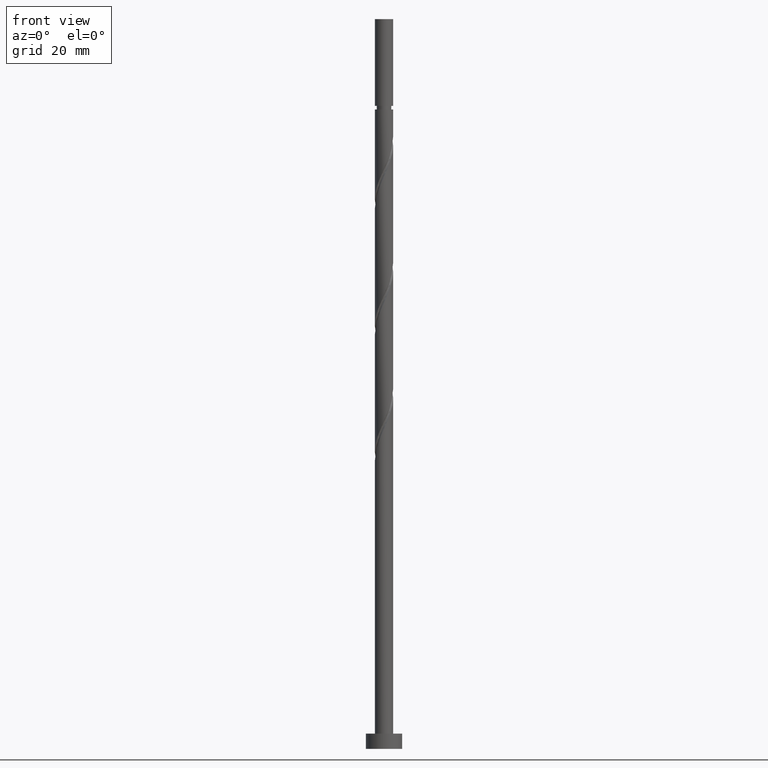
[diagram: clean part render]
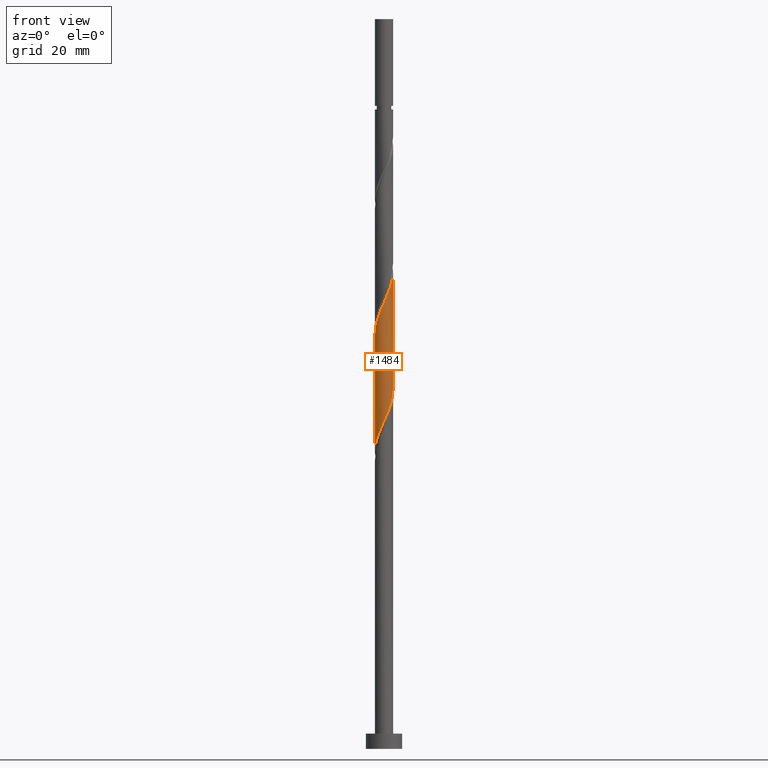
[diagram: same view with one face highlighted and labeled with its STEP entity id]
A machine part, front view. The second image highlights one B-rep face of the part: STEP entity #1484.
In plain terms, the highlighted cylindrical surface (edge-blend (fillet) strip) has radius 3 mm, axis along (-0, -0, -1).
Its self-contained STEP definition (entity closure, byte-faithful):
#30 = CYLINDRICAL_SURFACE ( 'NONE', #1209, 3.000000000000000444 ) ;
#86 = CARTESIAN_POINT ( 'NONE',  ( 2.960644198141486605, -0.4843407189274824831, 156.6878690716885387 ) ) ;
#95 = CARTESIAN_POINT ( 'NONE',  ( 1.612492905673893251, -2.555886599839288120, 151.0788947127142023 ) ) ;
#111 = CARTESIAN_POINT ( 'NONE',  ( -2.342886767063571796, -1.908814102736324125, 141.4635100973295607 ) ) ;
#118 = CARTESIAN_POINT ( 'NONE',  ( -1.283232999305656152, -2.711699295551223798, 105.4058177896372115 ) ) ;
#120 = CARTESIAN_POINT ( 'NONE',  ( -2.537251308848762932, -1.600736016882631008, 140.6622280460475167 ) ) ;
#138 = CARTESIAN_POINT ( 'NONE',  ( -0.5969924622639732892, -2.939999999999999503, 107.0083818922013563 ) ) ;
#156 = LINE ( 'NONE', #618, #919 ) ;
#191 = CARTESIAN_POINT ( 'NONE',  ( -3.000000000000005329, 6.939555479444983031E-15, 136.9304600163094960 ) ) ;
#203 = EDGE_CURVE ( 'NONE', #546, #259, #1482, .T. ) ;
#239 = VERTEX_POINT ( 'NONE', #1560 ) ;
#250 = CARTESIAN_POINT ( 'NONE',  ( 1.502725340646222207, -2.596500828149240991, 111.8160741998936487 ) ) ;
#259 = VERTEX_POINT ( 'NONE', #1247 ) ;
#280 = CARTESIAN_POINT ( 'NONE',  ( 2.731615850633948295, -1.292657931028936558, 115.8224844563039113 ) ) ;
#293 = EDGE_CURVE ( 'NONE', #1615, #259, #409, .T. ) ;
#321 = DIRECTION ( 'NONE',  ( -0.000000000000000000, -0.000000000000000000, -1.000000000000000000 ) ) ;
#388 = CARTESIAN_POINT ( 'NONE',  ( -3.000000000000000444, 0.000000000000000000, 241.0000000000000000 ) ) ;
#390 = CARTESIAN_POINT ( 'NONE',  ( 1.283232999305656596, -2.711699295551230904, 150.2776126614321299 ) ) ;
#399 = CARTESIAN_POINT ( 'NONE',  ( 2.177300491905832747, -2.095722369502527993, 152.6814588152782903 ) ) ;
#409 = LINE ( 'NONE', #388, #1170 ) ;
#411 = CARTESIAN_POINT ( 'NONE',  ( -2.961593349985112145, -0.6013771789905507648, 138.2583818922013563 ) ) ;
#420 = CARTESIAN_POINT ( 'NONE',  ( 2.961593349985107260, -0.6013771789905507648, 117.4250485588679851 ) ) ;
#427 = CARTESIAN_POINT ( 'NONE',  ( -1.612492905673892807, -2.555886599839282347, 104.6045357383551959 ) ) ;
#460 = EDGE_CURVE ( 'NONE', #239, #546, #156, .T. ) ;
#524 = CARTESIAN_POINT ( 'NONE',  ( 0.5969924622639735112, -2.940000000000004832, 148.6750485588680135 ) ) ;
#532 = CARTESIAN_POINT ( 'NONE',  ( 2.999999999999999112, -0.1193193910103120259, 118.4887995191268715 ) ) ;
#534 = CARTESIAN_POINT ( 'NONE',  ( -3.000000000000005329, 6.939555479444983031E-15, 136.9304600163094960 ) ) ;
#541 = CARTESIAN_POINT ( 'NONE',  ( -2.901834587494009909, -0.8438280090812978473, 99.79684343066290353 ) ) ;
#546 = VERTEX_POINT ( 'NONE', #1451 ) ;
#552 = CARTESIAN_POINT ( 'NONE',  ( 2.537251308848757159, -1.600736016882629675, 115.0212024050218531 ) ) ;
#562 = CARTESIAN_POINT ( 'NONE',  ( -2.177300491905830082, -2.095722369502523996, 103.0019716357910795 ) ) ;
#568 = EDGE_LOOP ( 'NONE', ( #1785, #1834, #1084, #1810 ) ) ;
#572 = CARTESIAN_POINT ( 'NONE',  ( 0.1239431067051828816, -2.997438590913959366, 108.6109459947654443 ) ) ;
#618 = CARTESIAN_POINT ( 'NONE',  ( 3.000000000000000444, 3.673940397442060361E-16, 241.0000000000000000 ) ) ;
#655 = CARTESIAN_POINT ( 'NONE',  ( 2.758702937603747074, -1.178795190886223754, 155.0853049691244223 ) ) ;
#671 = CARTESIAN_POINT ( 'NONE',  ( -1.894896698789861000, -2.325804484670903172, 103.8032536870731377 ) ) ;
#684 = CARTESIAN_POINT ( 'NONE',  ( -2.960644198141480388, -0.4843407189274797631, 98.99556137938081690 ) ) ;
#693 = CARTESIAN_POINT ( 'NONE',  ( -3.000000000000000444, -0.2437693156111352122, 98.45933783877485723 ) ) ;
#713 = CARTESIAN_POINT ( 'NONE',  ( -2.758702937603741745, -1.178795190886219979, 100.5981254819449333 ) ) ;
#796 = CARTESIAN_POINT ( 'NONE',  ( -2.731615850633954068, -1.292657931028937890, 139.8609459947654443 ) ) ;
#806 = CARTESIAN_POINT ( 'NONE',  ( 3.000000000000004441, 1.031959758796775264E-15, 157.7637933496428104 ) ) ;
#822 = CARTESIAN_POINT ( 'NONE',  ( -0.2400118315905278299, -3.012488008736831979, 107.8096639434833861 ) ) ;
#919 = VECTOR ( 'NONE', #1019, 1000.000000000000000 ) ;
#959 = CARTESIAN_POINT ( 'NONE',  ( -2.990523579387033948, -0.2382618751084433495, 137.4570998409193407 ) ) ;
#968 = CARTESIAN_POINT ( 'NONE',  ( 1.894896698789863887, -2.325804484670908945, 151.8801767639962748 ) ) ;
#986 = CARTESIAN_POINT ( 'NONE',  ( -0.1239431067051857543, -2.997438590913966028, 147.0724844563039824 ) ) ;
#992 = CARTESIAN_POINT ( 'NONE',  ( 2.080442193850956301, -2.161425519892975267, 113.4186383024577367 ) ) ;
#1019 = DIRECTION ( 'NONE',  ( -0.000000000000000000, -0.000000000000000000, -1.000000000000000000 ) ) ;
#1029 = CARTESIAN_POINT ( 'NONE',  ( 0.000000000000000000, 0.000000000000000000, 241.0000000000000000 ) ) ;
#1084 = ORIENTED_EDGE ( 'NONE', *, *, #293, .T. ) ;
#1100 = CARTESIAN_POINT ( 'NONE',  ( 2.342886767063565578, -1.908814102736322793, 114.2199203537398091 ) ) ;
#1102 = CARTESIAN_POINT ( 'NONE',  ( -2.080442193850960297, -2.161425519892978375, 142.2647921486115763 ) ) ;
#1108 = CARTESIAN_POINT ( 'NONE',  ( 2.846604600309526667, -0.9470175550097449380, 116.6237665075859553 ) ) ;
#1117 = CARTESIAN_POINT ( 'NONE',  ( -2.999999999999999556, -5.758036335315384076E-15, 97.91963710142653099 ) ) ;
#1128 = CARTESIAN_POINT ( 'NONE',  ( -0.9539730929374202750, -2.867511991263166582, 106.2070998409192981 ) ) ;
#1170 = VECTOR ( 'NONE', #1693, 1000.000000000000000 ) ;
#1209 = AXIS2_PLACEMENT_3D ( 'NONE', #1029, #321, #1294 ) ;
#1219 = CARTESIAN_POINT ( 'NONE',  ( -3.000000000000004441, -0.1193193910103052674, 137.1946309319424415 ) ) ;
#1238 = CARTESIAN_POINT ( 'NONE',  ( -2.396435889809652053, -1.804742371096832665, 102.2006895845090213 ) ) ;
#1247 = CARTESIAN_POINT ( 'NONE',  ( -2.999999999999999556, -5.758036335315384076E-15, 97.91963710142653099 ) ) ;
#1249 = CARTESIAN_POINT ( 'NONE',  ( -1.502725340646227092, -2.596500828149244988, 143.8673562511757211 ) ) ;
#1277 = CARTESIAN_POINT ( 'NONE',  ( 0.8376755528274977269, -2.880676946169970165, 110.2135100973295323 ) ) ;
#1279 = FACE_OUTER_BOUND ( 'NONE', #568, .T. ) ;
#1294 = DIRECTION ( 'NONE',  ( -1.000000000000000000, 0.000000000000000000, 0.000000000000000000 ) ) ;
#1356 = CARTESIAN_POINT ( 'NONE',  ( 2.901834587494015238, -0.8438280090813020662, 155.8865870204064663 ) ) ;
#1397 = CARTESIAN_POINT ( 'NONE',  ( 0.2400118315905257205, -3.012488008736836864, 147.8737665075859411 ) ) ;
#1423 = CARTESIAN_POINT ( 'NONE',  ( 1.187453060654100057, -2.778964719248851800, 111.0147921486115763 ) ) ;
#1451 = CARTESIAN_POINT ( 'NONE',  ( 2.999999999999999556, 4.531649375585873091E-15, 118.7529704347598596 ) ) ;
#1482 =( BOUNDED_CURVE ( )  B_SPLINE_CURVE ( 2, ( #1817, #532, #1685, #420, #1108, #280, #552, #1100, #992, #1551, #250, #1423, #1277, #1659, #572, #822, #138, #1128, #118, #427, #671, #562, #1238, #1835, #713, #541, #684, #693, #1117 ),
 .UNSPECIFIED., .F., .T. ) 
 B_SPLINE_CURVE_WITH_KNOTS ( ( 3, 2, 2, 2, 2, 2, 2, 2, 2, 2, 2, 2, 2, 2, 3 ),
 ( 0.8045271625973834384, 0.8076923076923077094, 0.8173076923076922906, 0.8269230769230768718, 0.8365384615384615641, 0.8461538461538461453, 0.8557692307692307265, 0.8653846153846154188, 0.8750000000000000000, 0.8846153846153845812, 0.8942307692307692735, 0.9038461538461538547, 0.9134615384615384359, 0.9230769230769231282, 0.9295271625973833274 ),
 .UNSPECIFIED. ) 
 CURVE ( )  GEOMETRIC_REPRESENTATION_ITEM ( )  RATIONAL_B_SPLINE_CURVE ( ( 0.9061636035682816281, 0.9069090390690703885, 0.9090909090909268242, 0.9024626128164302541, 0.9090909090909268242, 0.9024626128164302541, 0.9090909090909268242, 0.9024626128164302541, 0.9090909090909268242, 0.9024626128164302541, 0.9090909090909268242, 0.9024626128164302541, 0.9090909090909268242, 0.9024626128164302541, 0.9090909090909268242, 0.9024626128164302541, 0.9090909090909268242, 0.9024626128164302541, 0.9090909090909268242, 0.9024626128164302541, 0.9090909090909268242, 0.9024626128164302541, 0.9090909090909268242, 0.9024626128164302541, 0.9090909090909268242, 0.9024626128164302541, 0.9090909090909268242, 0.9046444828382866898, 0.9061636035682814061 ) ) 
 REPRESENTATION_ITEM ( '' )  );
#1484 = ADVANCED_FACE ( 'NONE', ( #1279 ), #30, .T. ) ;
#1524 = CARTESIAN_POINT ( 'NONE',  ( 3.000000000000003997, -0.2437693156111407355, 157.2240926122944416 ) ) ;
#1533 = CARTESIAN_POINT ( 'NONE',  ( 2.615571287713478466, -1.513762372691146885, 154.2840229178423783 ) ) ;
#1551 = CARTESIAN_POINT ( 'NONE',  ( 1.817997620638345024, -2.414036937049628850, 112.6173562511757069 ) ) ;
#1560 = CARTESIAN_POINT ( 'NONE',  ( 3.000000000000004885, 1.031959758796775264E-15, 157.7637933496428104 ) ) ;
#1615 = VERTEX_POINT ( 'NONE', #191 ) ;
#1625 =( BOUNDED_CURVE ( )  B_SPLINE_CURVE ( 2, ( #534, #1219, #959, #411, #1797, #796, #120, #111, #1102, #1661, #1249, #1783, #1677, #1809, #986, #1397, #524, #1776, #390, #95, #968, #399, #1650, #1533, #655, #1356, #86, #1524, #806 ),
 .UNSPECIFIED., .F., .T. ) 
 B_SPLINE_CURVE_WITH_KNOTS ( ( 3, 2, 2, 2, 2, 2, 2, 2, 2, 2, 2, 2, 2, 2, 3 ),
 ( 0.3045271625973833274, 0.3076923076923077094, 0.3173076923076922906, 0.3269230769230768718, 0.3365384615384615641, 0.3461538461538461453, 0.3557692307692307265, 0.3653846153846154188, 0.3750000000000000000, 0.3846153846153845812, 0.3942307692307692735, 0.4038461538461538547, 0.4134615384615384359, 0.4230769230769231282, 0.4295271625973832164 ),
 .UNSPECIFIED. ) 
 CURVE ( )  GEOMETRIC_REPRESENTATION_ITEM ( )  RATIONAL_B_SPLINE_CURVE ( ( 0.9061636035682884005, 0.9069090390690770498, 0.9090909090909334855, 0.9024626128164370265, 0.9090909090909334855, 0.9024626128164370265, 0.9090909090909334855, 0.9024626128164370265, 0.9090909090909334855, 0.9024626128164370265, 0.9090909090909334855, 0.9024626128164370265, 0.9090909090909334855, 0.9024626128164370265, 0.9090909090909334855, 0.9024626128164370265, 0.9090909090909334855, 0.9024626128164370265, 0.9090909090909334855, 0.9024626128164370265, 0.9090909090909334855, 0.9024626128164370265, 0.9090909090909334855, 0.9024626128164370265, 0.9090909090909334855, 0.9024626128164370265, 0.9090909090909334855, 0.9046444828382936842, 0.9061636035682882895 ) ) 
 REPRESENTATION_ITEM ( '' )  );
#1650 = CARTESIAN_POINT ( 'NONE',  ( 2.396435889809654718, -1.804742371096837772, 153.4827408665603343 ) ) ;
#1659 = CARTESIAN_POINT ( 'NONE',  ( 0.4878980450008937320, -2.982389173091088530, 109.4122280460474883 ) ) ;
#1661 = CARTESIAN_POINT ( 'NONE',  ( -1.817997620638349909, -2.414036937049631959, 143.0660741998936487 ) ) ;
#1677 = CARTESIAN_POINT ( 'NONE',  ( -0.8376755528275001694, -2.880676946169975494, 145.4699203537397239 ) ) ;
#1685 = CARTESIAN_POINT ( 'NONE',  ( 2.990523579387029507, -0.2382618751084461528, 118.2263306101500291 ) ) ;
#1693 = DIRECTION ( 'NONE',  ( -0.000000000000000000, -0.000000000000000000, -1.000000000000000000 ) ) ;
#1776 = CARTESIAN_POINT ( 'NONE',  ( 0.9539730929374193868, -2.867511991263172355, 149.4763306101500859 ) ) ;
#1783 = CARTESIAN_POINT ( 'NONE',  ( -1.187453060654103387, -2.778964719248856685, 144.6686383024577367 ) ) ;
#1785 = ORIENTED_EDGE ( 'NONE', *, *, #460, .F. ) ;
#1797 = CARTESIAN_POINT ( 'NONE',  ( -2.846604600309533328, -0.9470175550097440498, 139.0596639434834003 ) ) ;
#1809 = CARTESIAN_POINT ( 'NONE',  ( -0.4878980450008971181, -2.982389173091093859, 146.2712024050218247 ) ) ;
#1810 = ORIENTED_EDGE ( 'NONE', *, *, #203, .F. ) ;
#1817 = CARTESIAN_POINT ( 'NONE',  ( 2.999999999999999556, 4.531649375585872302E-15, 118.7529704347598596 ) ) ;
#1821 = EDGE_CURVE ( 'NONE', #1615, #239, #1625, .T. ) ;
#1834 = ORIENTED_EDGE ( 'NONE', *, *, #1821, .F. ) ;
#1835 = CARTESIAN_POINT ( 'NONE',  ( -2.615571287713475357, -1.513762372691142000, 101.3994075332269915 ) ) ;